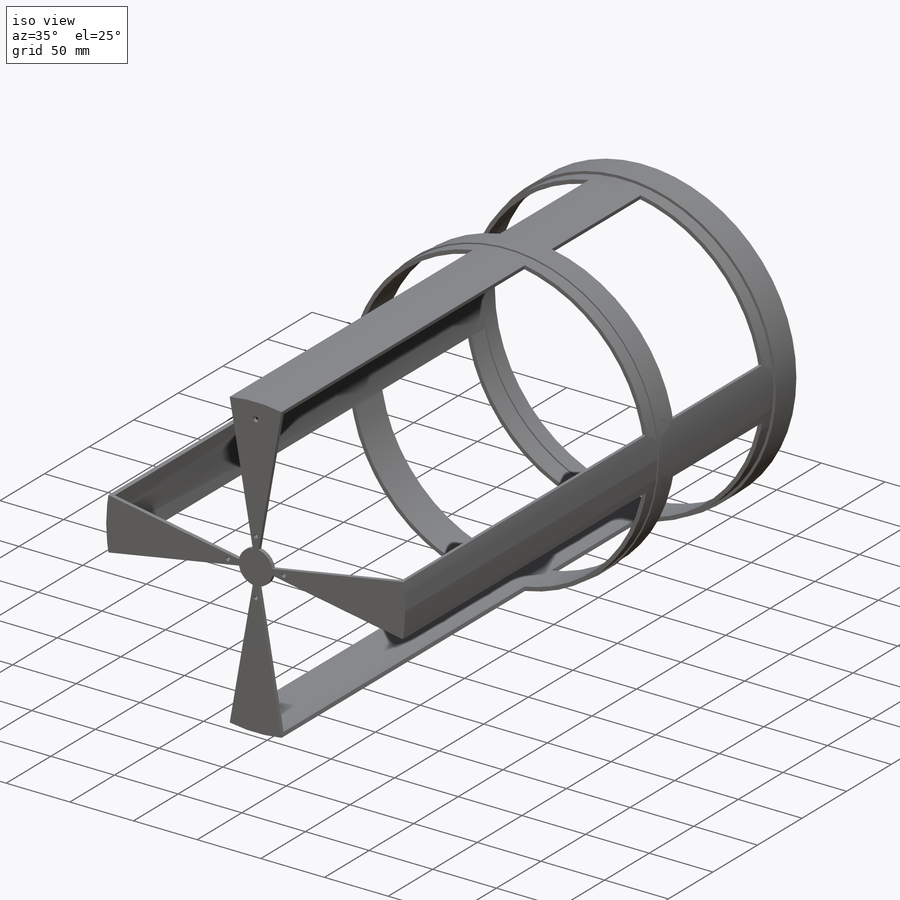
[diagram: iso view]
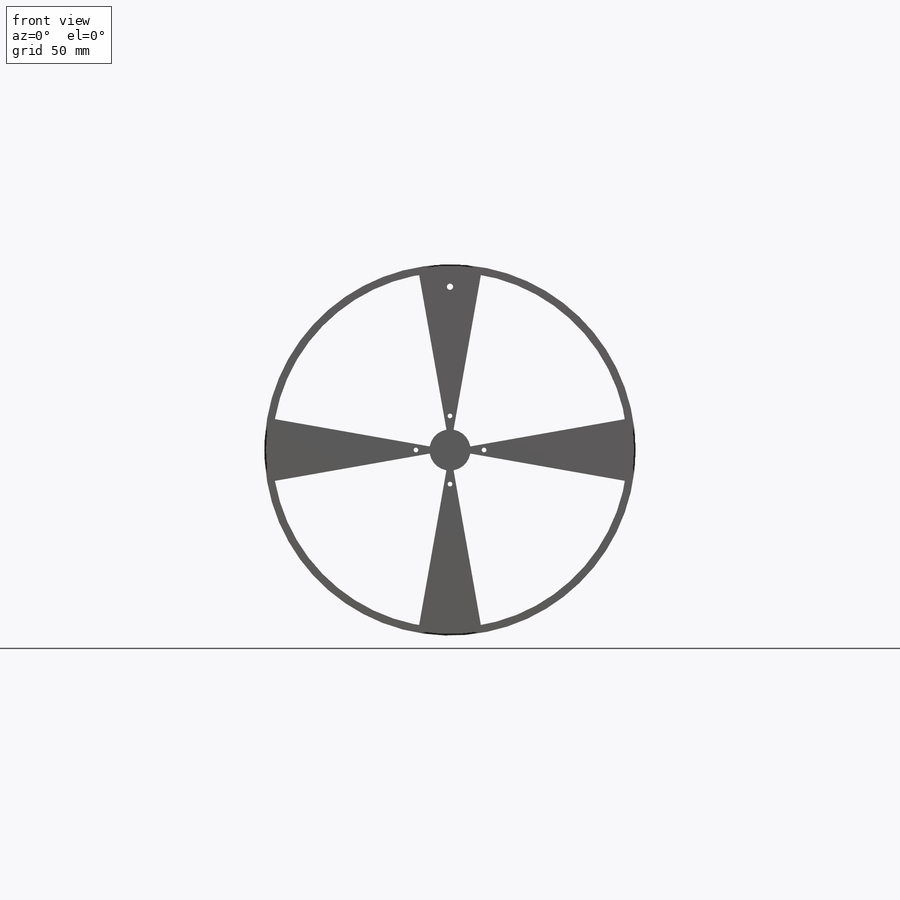
[diagram: front view]
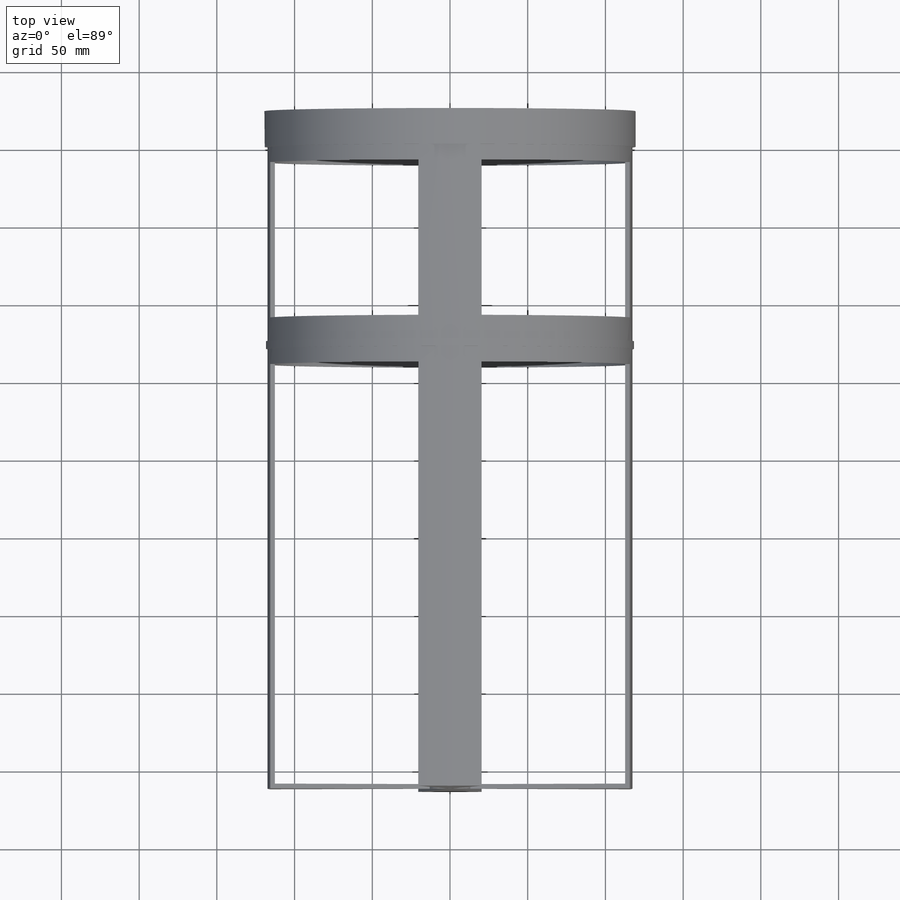
[diagram: top view]
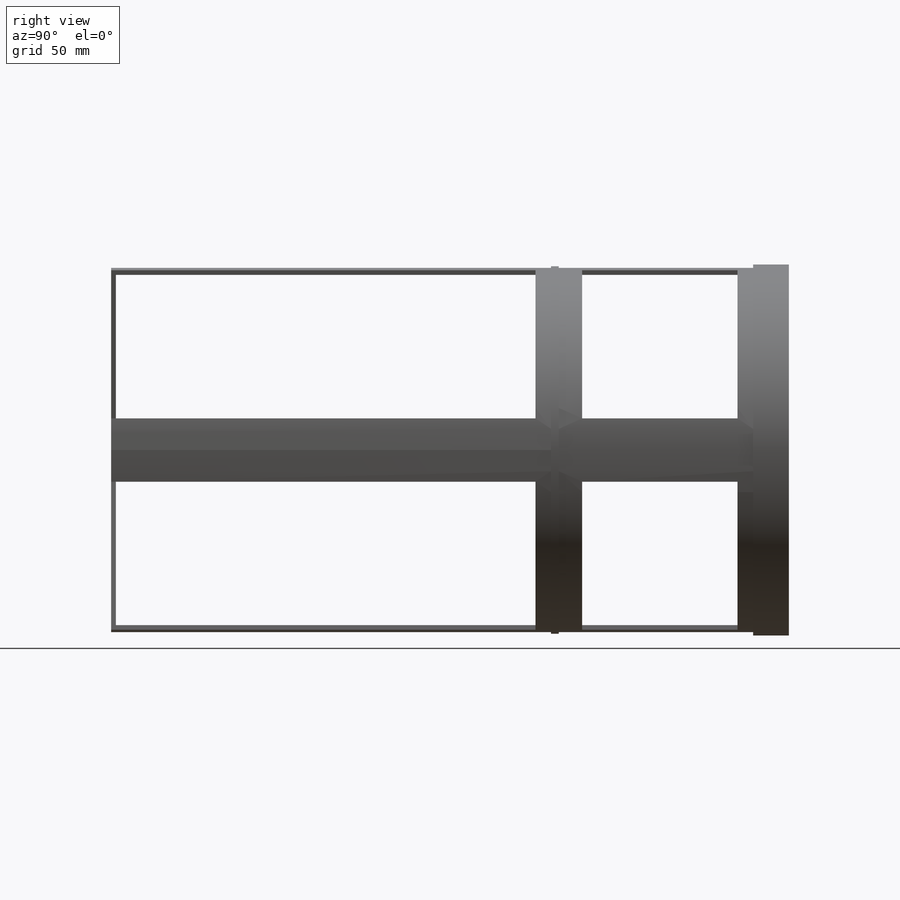
[diagram: right view]
SOLIDWORKS PART (.sldprt)
format: sldprt  version: not decoded by parser v0  size: 372,224 bytes
history: native  units: mm
features: sketch x10, extrude x10, material x1 (+16 scaffold rows collapsed)
feature tree (37):
  scaffold x16  (default folders/planes/origin — collapsed)
  material  "6063-T4"
  sketch  "Sketch1"  dims[D1=~121.999681mm]
  extrude  "Extrude1"  Depth=5mm
  sketch  "Sketch2"  dims[D1=~117.048588mm]
  extrude  "Extrude2"  Depth=5mm
  sketch  "Sketch3"  dims[D1=~116.674616mm]
  extrude  "Extrude3"  Depth=13mm
  sketch  "Sketch4"  dims[D1=~116.761345mm]
  extrude  "Extrude4"  Depth=10mm
  sketch  "Sketch5"  dims[D1=10.0deg]
  extrude  "Extrude5"  Depth=100mm
  sketch  "Sketch6"
  extrude  "Extrude7"  Depth=15mm
  sketch  "Sketch7"  dims[D1=~122.825189mm]
  extrude  "Extrude8"  Depth=5mm
  sketch  "Sketch8"  dims[D1=~153.886691mm]
  extrude  "Extrude9"  Depth=10mm
  sketch  "Sketch9"  dims[D1=80.0deg]
  extrude  "Extrude10"  Depth=270mm
  sketch  "Sketch10"  dims[D5=~5.144938mm D1=21.92mm D2=21.92mm D3=21.92mm D4=21.92mm]
  extrude  "Extrude11"  Depth=3mm
decode coverage: 19 of 20 modeling features carry decoded parameters
note: ~ marks probable driven/reference dimensions
note: suppression state not decoded; provenance and decode notes live in map.json
